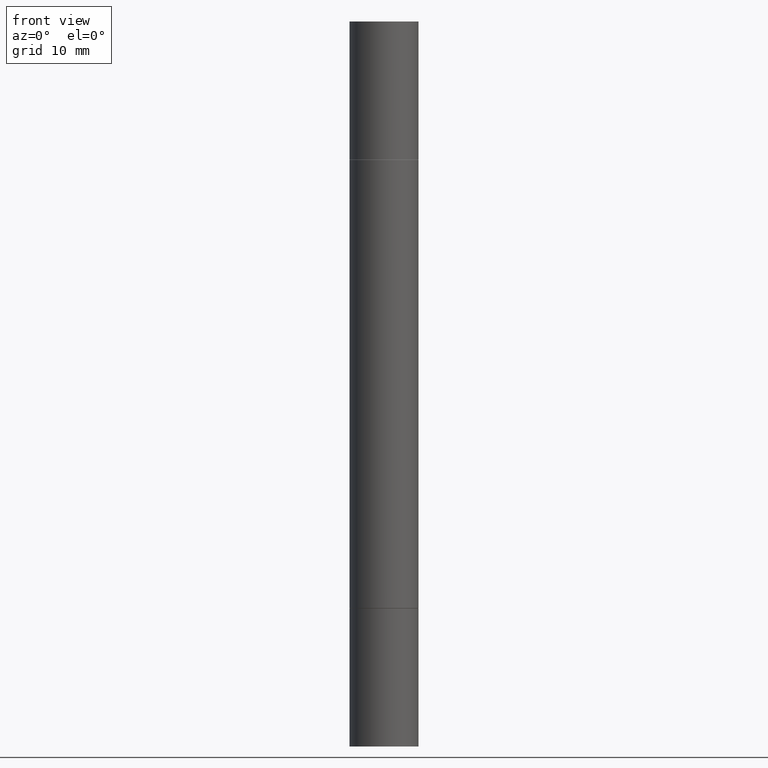
[diagram: clean part render]
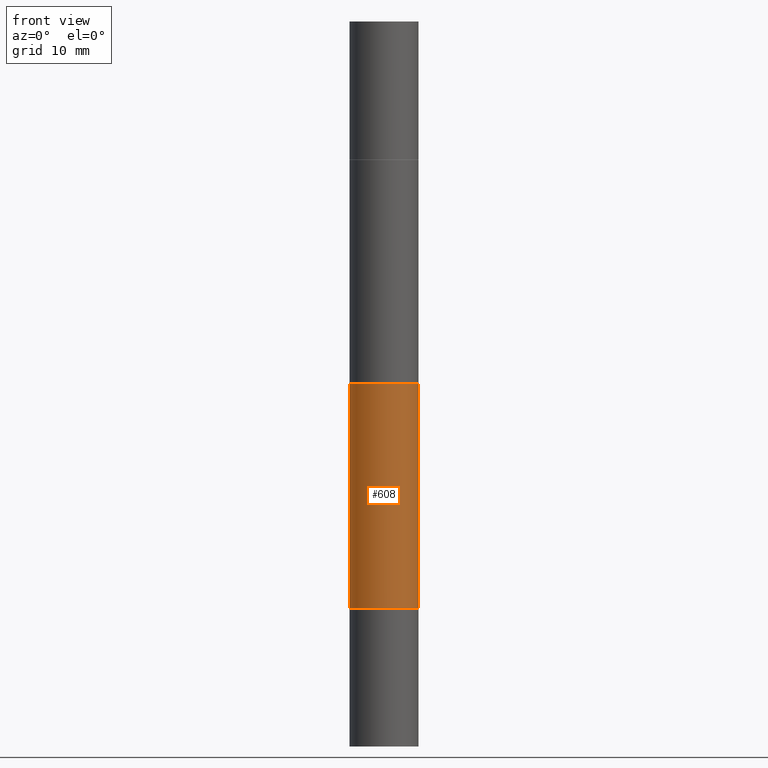
[diagram: same view with one face highlighted and labeled with its STEP entity id]
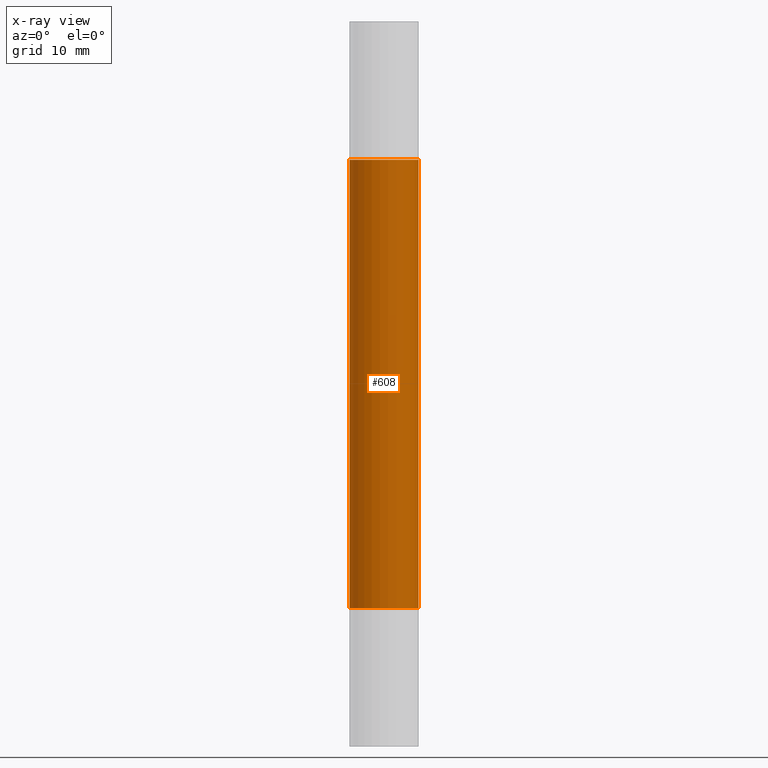
[diagram: x-ray of the same camera — body ghosted, the highlighted face saturated]
A machine part, front view. The second image highlights one B-rep face of the part: STEP entity #608.
The next image is the same camera in x-ray: the body ghosted, the highlighted face saturated — about 0% of this face is hidden behind the body in this view.
In plain terms, the highlighted cylindrical surface (edge-blend (fillet) strip) has radius 2.9997 mm, axis along (-0, -0, -1).
Its self-contained STEP definition (entity closure, byte-faithful):
#4 = CARTESIAN_POINT ( 'NONE',  ( 0.1180999999999999966, -7.831741791159056177E-15, -2.006899999999999906 ) ) ;
#6 = LINE ( 'NONE', #263, #514 ) ;
#16 = DIRECTION ( 'NONE',  ( -2.445468806185136597E-29, -3.492890411551752677E-15, -1.000000000000000000 ) ) ;
#25 = ORIENTED_EDGE ( 'NONE', *, *, #320, .T. ) ;
#37 = VERTEX_POINT ( 'NONE', #254 ) ;
#39 = DIRECTION ( 'NONE',  ( -2.445468806185136877E-29, -3.492890411551753071E-15, -1.000000000000000000 ) ) ;
#52 = VERTEX_POINT ( 'NONE', #4 ) ;
#70 = VECTOR ( 'NONE', #39, 39.37007874015748143 ) ;
#73 = DIRECTION ( 'NONE',  ( 1.000000000000000000, -6.982962677686271444E-15, 0.000000000000000000 ) ) ;
#75 = CARTESIAN_POINT ( 'NONE',  ( 0.1180999999999999966, -2.476474751543767778E-15, -0.4733999999999996544 ) ) ;
#82 = FACE_OUTER_BOUND ( 'NONE', #490, .T. ) ;
#98 = CARTESIAN_POINT ( 'NONE',  ( 0.1180999999999998856, -9.486356518486979401E-15, -2.480299999999999727 ) ) ;
#123 = DIRECTION ( 'NONE',  ( -2.445468806185136877E-29, -3.492890411551753071E-15, -1.000000000000000000 ) ) ;
#131 = DIRECTION ( 'NONE',  ( 1.000000000000000000, -6.982962677686265133E-15, 0.000000000000000000 ) ) ;
#132 = ORIENTED_EDGE ( 'NONE', *, *, #512, .F. ) ;
#142 = ORIENTED_EDGE ( 'NONE', *, *, #158, .T. ) ;
#158 = EDGE_CURVE ( 'NONE', #37, #237, #6, .T. ) ;
#189 = CARTESIAN_POINT ( 'NONE',  ( 4.907811347132950827E-29, -1.651786859309018332E-15, -0.4733999999999996544 ) ) ;
#237 = VERTEX_POINT ( 'NONE', #530 ) ;
#250 = VERTEX_POINT ( 'NONE', #75 ) ;
#254 = CARTESIAN_POINT ( 'NONE',  ( -0.1180999999999999966, -8.415620457722018772E-16, -0.4733999999999996544 ) ) ;
#263 = CARTESIAN_POINT ( 'NONE',  ( -0.1180999999999998856, -7.851443812715415176E-15, -2.480299999999999727 ) ) ;
#278 = DIRECTION ( 'NONE',  ( -2.445468806185136597E-29, 3.491481338843145583E-15, 1.000000000000000000 ) ) ;
#320 = EDGE_CURVE ( 'NONE', #237, #52, #435, .T. ) ;
#350 = DIRECTION ( 'NONE',  ( 2.445468806185136597E-29, 3.492890411551752677E-15, 1.000000000000000000 ) ) ;
#387 = LINE ( 'NONE', #98, #70 ) ;
#400 = EDGE_CURVE ( 'NONE', #250, #52, #387, .T. ) ;
#435 = CIRCLE ( 'NONE', #634, 0.1180999999999999966 ) ;
#473 = AXIS2_PLACEMENT_3D ( 'NONE', #649, #16, #73 ) ;
#490 = EDGE_LOOP ( 'NONE', ( #132, #142, #25, #588 ) ) ;
#512 = EDGE_CURVE ( 'NONE', #37, #250, #537, .T. ) ;
#514 = VECTOR ( 'NONE', #123, 39.37007874015748143 ) ;
#530 = CARTESIAN_POINT ( 'NONE',  ( -0.1181000000000000105, -3.519735768829505001E-15, -2.006899999999999906 ) ) ;
#537 = CIRCLE ( 'NONE', #549, 0.1180999999999999966 ) ;
#549 = AXIS2_PLACEMENT_3D ( 'NONE', #189, #350, #555 ) ;
#555 = DIRECTION ( 'NONE',  ( 1.000000000000000000, -6.982962677686265133E-15, 0.000000000000000000 ) ) ;
#588 = ORIENTED_EDGE ( 'NONE', *, *, #400, .F. ) ;
#589 = CYLINDRICAL_SURFACE ( 'NONE', #473, 0.1180999999999998856 ) ;
#608 = ADVANCED_FACE ( 'NONE', ( #82 ), #589, .T. ) ;
#634 = AXIS2_PLACEMENT_3D ( 'NONE', #650, #278, #131 ) ;
#649 = CARTESIAN_POINT ( 'NONE',  ( 0.000000000000000000, -8.661668626252231138E-15, -2.480299999999999727 ) ) ;
#650 = CARTESIAN_POINT ( 'NONE',  ( 4.907811347132950827E-29, -7.007053898924308703E-15, -2.006899999999999906 ) ) ;